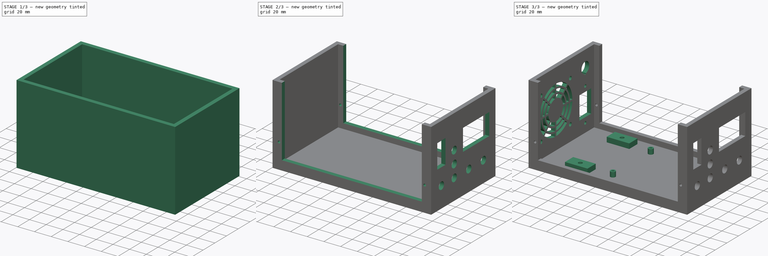
[diagram: build sequence overview — one tinted view per stage of 3, left to right]
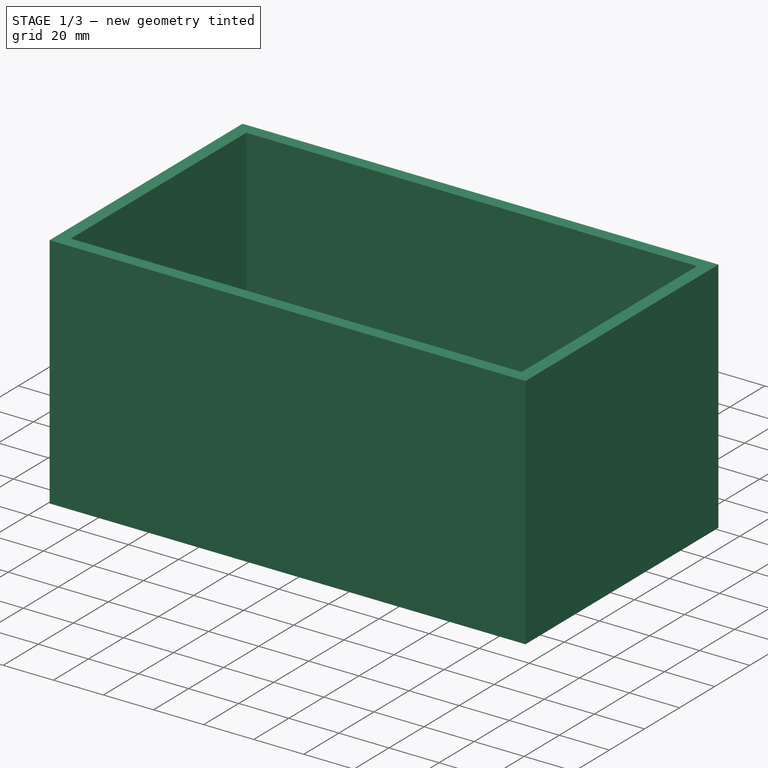
[diagram: stage 1 of 3 — iso view after this stage's code; geometry added in this stage tinted green]
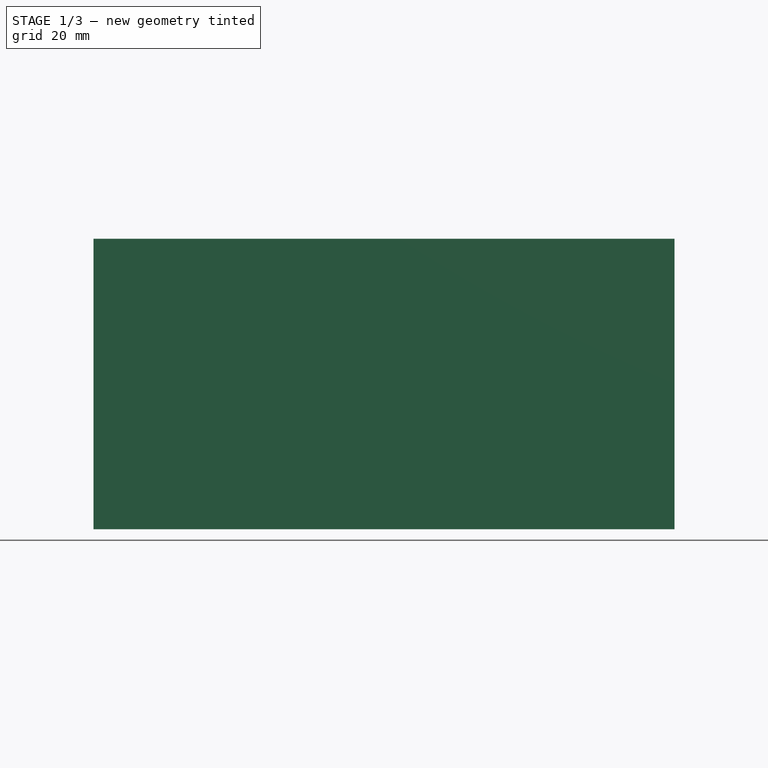
[diagram: stage 1 of 3 — front view after this stage's code; geometry added in this stage tinted green]
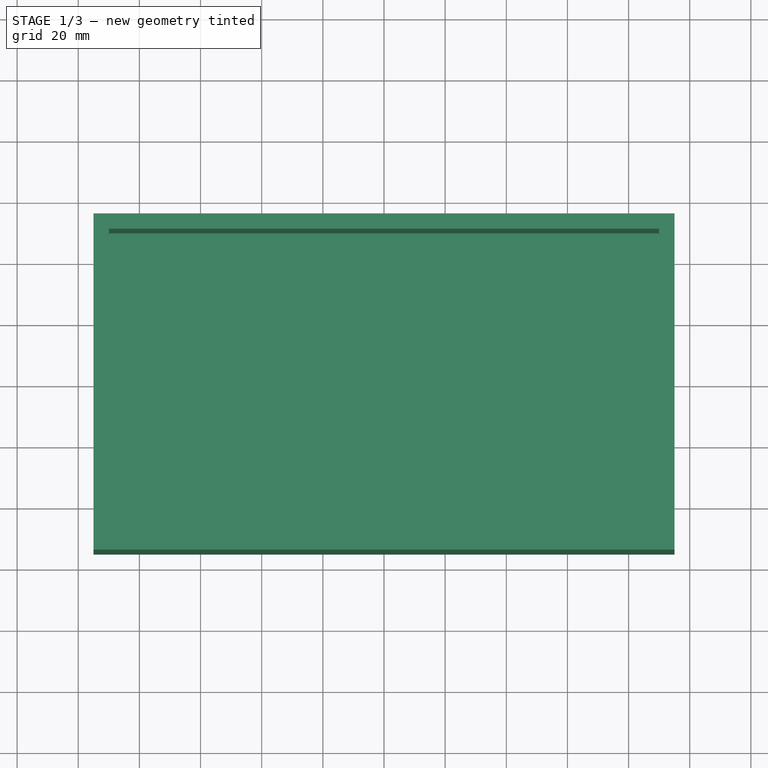
[diagram: stage 1 of 3 — top view after this stage's code; geometry added in this stage tinted green]
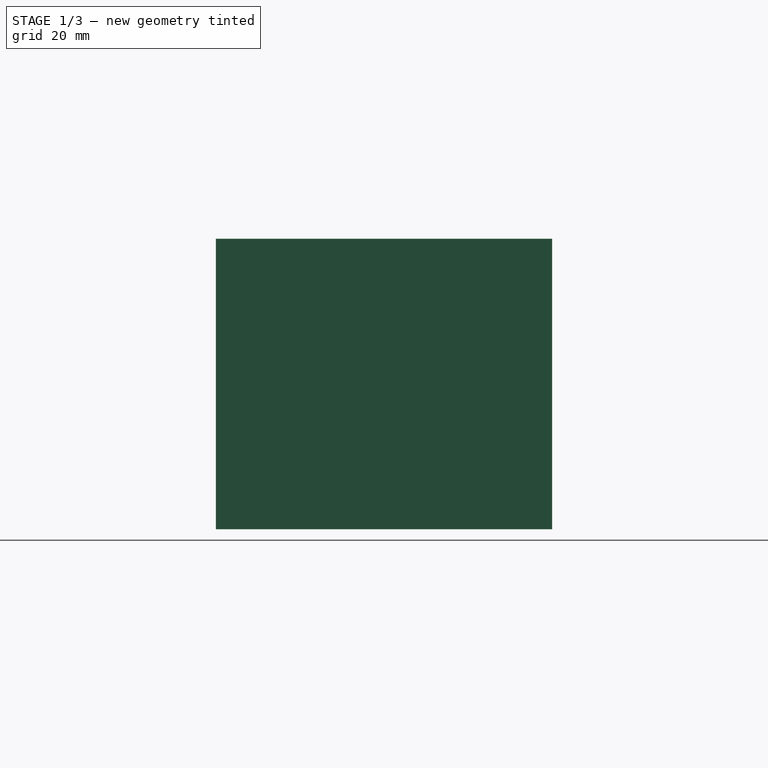
[diagram: stage 1 of 3 — right view after this stage's code; geometry added in this stage tinted green]
FCSTD DOCUMENT  (FreeCAD 0.19R24276 (Git))
Label: Case
License: All rights reserved
LicenseURL: http://en.wikipedia.org/wiki/All_rights_reserved
objects: Sketcher::SketchObject×6, PartDesign::Pocket×4, PartDesign::Pad×2, PartDesign::Body×1
note: 19 computed .brp shape members not serialized (recipe doc carries the construction recipe); baked Part::Feature solids carry a one-line shape summary decoded from their .brp

FEATURE [Sketcher::SketchObject] Sketch
  FullyConstrained = true
  MapMode = 5
  Support = -> [XY_Plane]
  sketch-geometry (4):
    g0: LineSegment StartX=-95 StartY=55 StartZ=0 EndX=95 EndY=55 EndZ=0
    g1: LineSegment StartX=95 StartY=55 StartZ=0 EndX=95 EndY=-55 EndZ=0
    g2: LineSegment StartX=95 StartY=-55 StartZ=0 EndX=-95 EndY=-55 EndZ=0
    g3: LineSegment StartX=-95 StartY=-55 StartZ=0 EndX=-95 EndY=55 EndZ=0
  constraints (9):
    c: Coincident(g0,g1)
    c: Coincident(g1,g2)
    c: Coincident(g2,g3)
    c: Coincident(g3,g0)
    c: DistanceX(g0,g0) = 190
    c: DistanceY(g1,g1) = 110
    c: Symmetric(g2,g1,g-2)
    c: Symmetric(g0,g0,g-2)
    c: Symmetric(g1,g0,g-1)
FEATURE [PartDesign::Pad] Pad
  Direction = (1,1,1)
  Length = 95
  Length2 = 100
  Profile = -> Sketch
  Type = 0
FEATURE [Sketcher::SketchObject] Sketch001  label="Front"
  FullyConstrained = true
  MapMode = 5
  Placement = pos=(90,0,0) rot=(0.57735,0.57735,0.57735;2.0944rad)
  sketch-geometry (14):
    g0: Circle CenterX=-15.4939 CenterY=24.7951 CenterZ=0 NormalX=0 NormalY=0 NormalZ=1 AngleXU=0 Radius=4.5
    g1: Circle CenterX=34.4619 CenterY=24.7951 CenterZ=0 NormalX=0 NormalY=0 NormalZ=1 AngleXU=0 Radius=4.5
    g2: Circle CenterX=-15.4939 CenterY=54.7951 CenterZ=0 NormalX=0 NormalY=0 NormalZ=1 AngleXU=0 Radius=4.5
    g3: LineSegment StartX=-0.538147 StartY=73.2629 StartZ=0 EndX=44.4619 EndY=73.2629 EndZ=0
    g4: LineSegment StartX=44.4619 StartY=73.2629 StartZ=0 EndX=44.4619 EndY=47.2629 EndZ=0
    g5: LineSegment StartX=44.4619 StartY=47.2629 StartZ=0 EndX=-0.538147 EndY=47.2629 EndZ=0
    g6: LineSegment StartX=-0.538147 StartY=47.2629 StartZ=0 EndX=-0.538147 EndY=73.2629 EndZ=0
    g7: Circle CenterX=9.46185 CenterY=24.7951 CenterZ=0 NormalX=0 NormalY=0 NormalZ=1 AngleXU=0 Radius=4.5
    g8: Circle CenterX=-15.4939 CenterY=39.7951 CenterZ=0 NormalX=0 NormalY=0 NormalZ=1 AngleXU=0 Radius=4.5
    g9: LineSegment StartX=-44.4939 StartY=73.8 StartZ=0 EndX=-30.4939 EndY=73.8 EndZ=0
    g10: LineSegment StartX=-30.4939 StartY=73.8 StartZ=0 EndX=-30.4939 EndY=44.8 EndZ=0
    g11: LineSegment StartX=-30.4939 StartY=44.8 StartZ=0 EndX=-44.4939 EndY=44.8 EndZ=0
    g12: LineSegment StartX=-44.4939 StartY=44.8 StartZ=0 EndX=-44.4939 EndY=73.8 EndZ=0
    g13: Circle CenterX=-37.4939 CenterY=24.8 CenterZ=0 NormalX=0 NormalY=0 NormalZ=1 AngleXU=0 Radius=4.5
  constraints (37):
    c: Radius(g0) = 4.5
    c: Radius(g2) = 4.5
    c: Radius(g1) = 4.5
    c: Coincident(g3,g4)
    c: Coincident(g4,g5)
    c: Coincident(g5,g6)
    c: Coincident(g6,g3)
    c: Horizontal(g3)
    c: Horizontal(g5)
    c: Vertical(g4)
    c: Vertical(g6)
    c: DistanceX(g3,g3) = 45
    c: Radius(g8) = 4.5
    c: Radius(g7) = 4.5
    c: DistanceY(g4,g4) = 26
    c: Coincident(g9,g10)
    c: Coincident(g10,g11)
    c: Coincident(g11,g12)
    c: Coincident(g12,g9)
    c: Horizontal(g9)
    c: Horizontal(g11)
    c: Vertical(g10)
    c: Vertical(g12)
    c: DistanceX(g9,g9) = 14
    c: DistanceY(g10,g10) = 29
    c: Radius(g13) = 4.5
    c: Block(g7)
    c: Block(g1)
    c: Block(g0)
    c: Block(g8)
    c: Block(g2)
    c: Block(g13)
    c: Block(g10)
    c: Block(g3)
    c: Block(g4)
    c: Block(g5)
    c: Block(g6)
FEATURE [Sketcher::SketchObject] Sketch003  label="Top"
  FullyConstrained = true
  MapMode = 5
  Placement = pos=(0,0,95) rot=(0,0,1;0rad)
  Support = -> [Pad]
  sketch-geometry (4):
    g0: LineSegment StartX=-90 StartY=50 StartZ=0 EndX=90 EndY=50 EndZ=0
    g1: LineSegment StartX=90 StartY=50 StartZ=0 EndX=90 EndY=-50 EndZ=0
    g2: LineSegment StartX=90 StartY=-50 StartZ=0 EndX=-90 EndY=-50 EndZ=0
    g3: LineSegment StartX=-90 StartY=-50 StartZ=0 EndX=-90 EndY=50 EndZ=0
  constraints (10):
    c: Coincident(g0,g1)
    c: Coincident(g1,g2)
    c: Coincident(g2,g3)
    c: Coincident(g3,g0)
    c: Horizontal(g2)
    c: Vertical(g3)
    c: DistanceY(g1,g1) = 100
    c: DistanceX(g0,g0) = 180
    c: Symmetric(g0,g0,g-2)
    c: Symmetric(g1,g0,g-1)
FEATURE [PartDesign::Pocket] Pocket
  BaseFeature = -> Pad
  Length = 90
  Length2 = 100
  Profile = -> Sketch003
  Type = 0
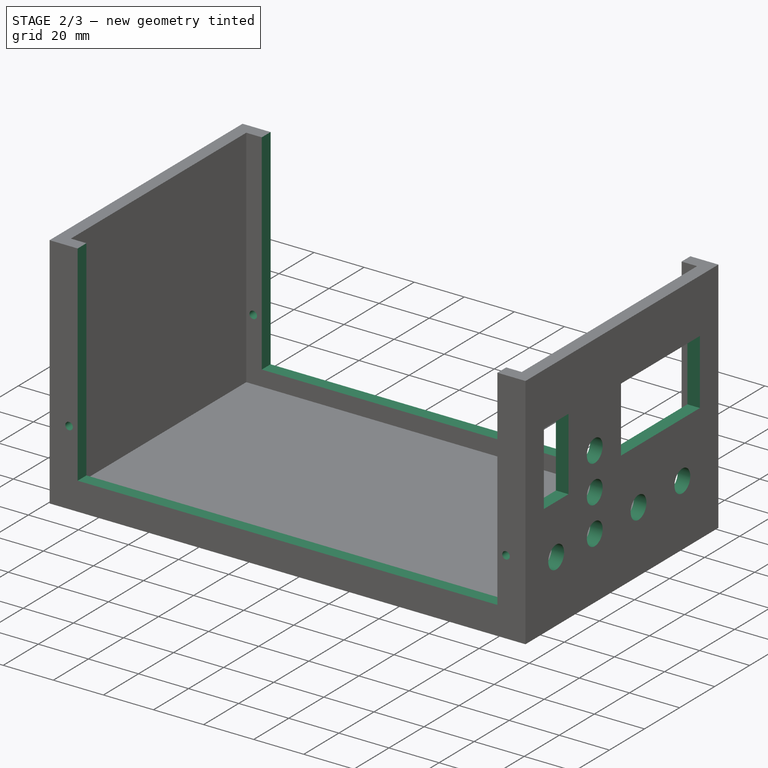
[diagram: stage 2 of 3 — iso view after this stage's code; geometry added in this stage tinted green]
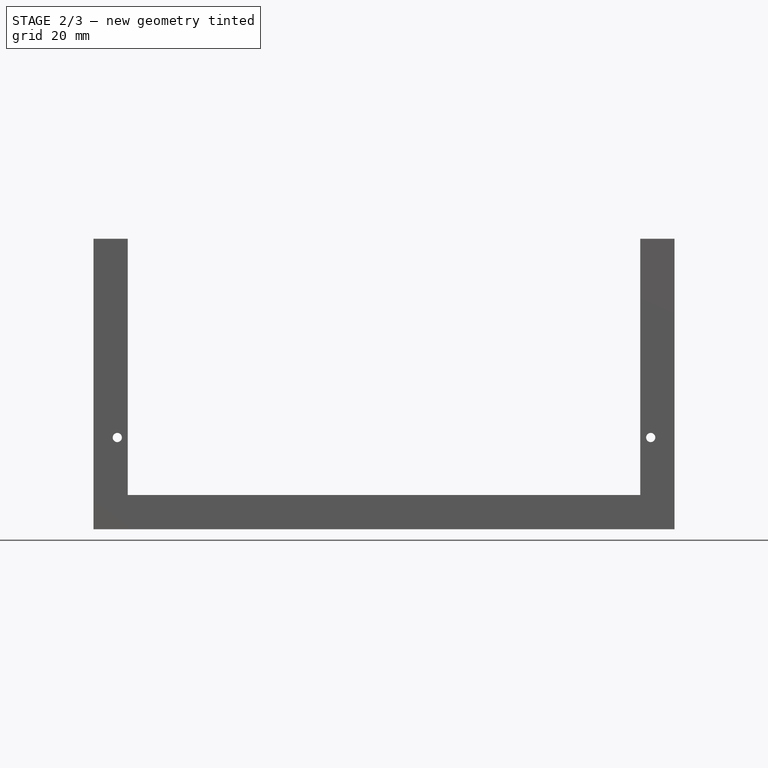
[diagram: stage 2 of 3 — front view after this stage's code; geometry added in this stage tinted green]
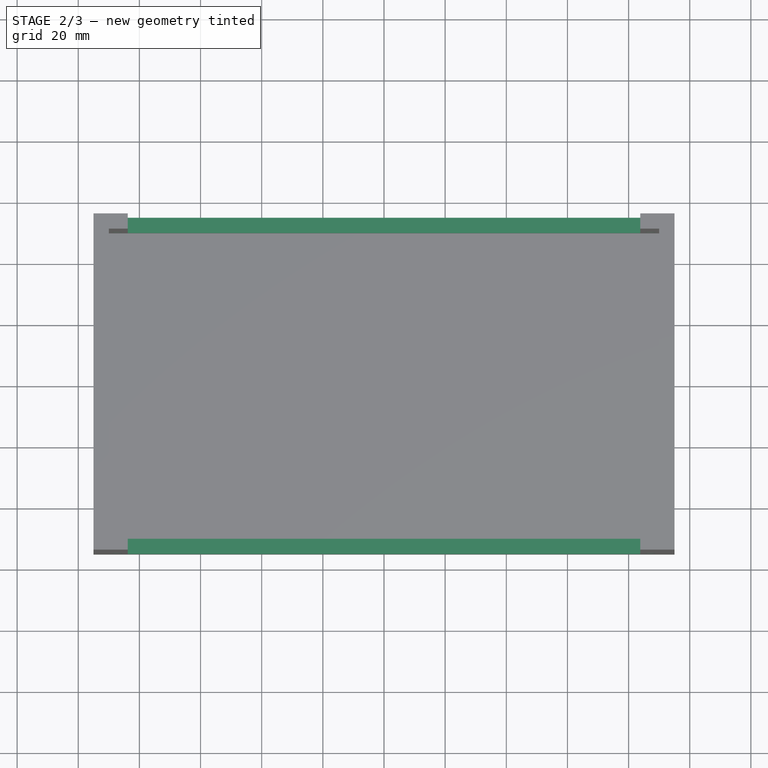
[diagram: stage 2 of 3 — top view after this stage's code; geometry added in this stage tinted green]
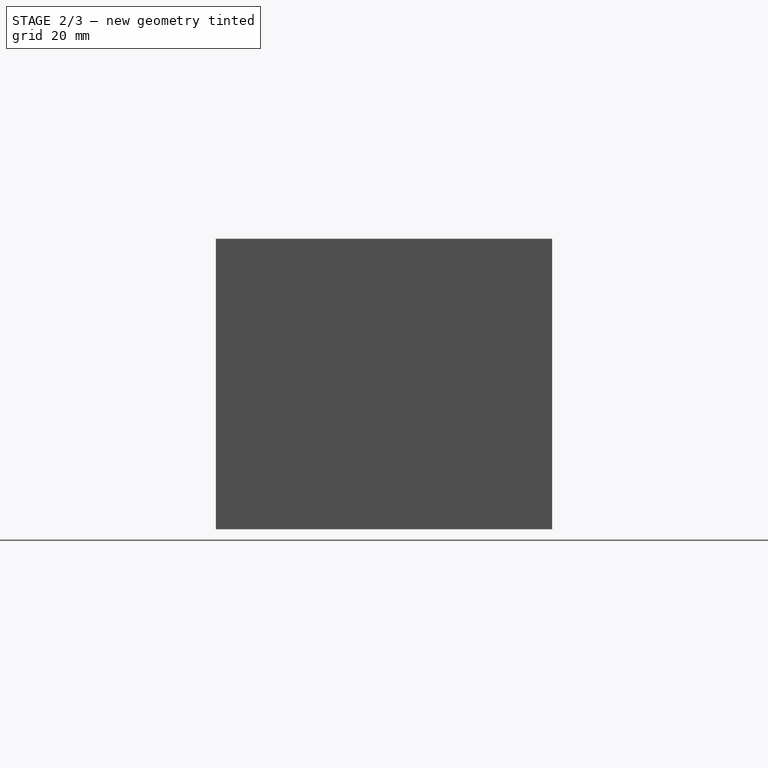
[diagram: stage 2 of 3 — right view after this stage's code; geometry added in this stage tinted green]
FEATURE [Sketcher::SketchObject] Sketch004  label="Internal"
  FullyConstrained = false
  MapMode = 5
  Placement = pos=(0,0,5) rot=(0,0,1;0rad)
  sketch-geometry (24):
    g0: GeomPoint X=-9.76776 Y=32.385 Z=0
    g1: GeomPoint X=80.4022 Y=32.385 Z=0
    g2: GeomPoint X=80.4022 Y=-32.385 Z=0
    g3: GeomPoint X=-9.76776 Y=-32.385 Z=0
    g4: GeomPoint X=-46.46 Y=35.7124 Z=0
    g5: LineSegment StartX=-59.96 StartY=42.7124 StartZ=0 EndX=-32.96 EndY=42.7124 EndZ=0
    g6: LineSegment StartX=-32.96 StartY=42.7124 StartZ=0 EndX=-32.96 EndY=28.7124 EndZ=0
    g7: LineSegment StartX=-32.96 StartY=28.7124 StartZ=0 EndX=-59.96 EndY=28.7124 EndZ=0
    g8: LineSegment StartX=-59.96 StartY=28.7124 StartZ=0 EndX=-59.96 EndY=42.7124 EndZ=0
    g9: Circle CenterX=-9.76776 CenterY=32.385 CenterZ=0 NormalX=0 NormalY=0 NormalZ=1 AngleXU=0 Radius=1.5
    g10: Circle CenterX=80.4022 CenterY=32.385 CenterZ=0 NormalX=0 NormalY=0 NormalZ=1 AngleXU=0 Radius=1.5
    g11: Circle CenterX=-9.76776 CenterY=-32.385 CenterZ=0 NormalX=0 NormalY=0 NormalZ=1 AngleXU=0 Radius=1.5
    g12: Circle CenterX=80.4022 CenterY=-32.385 CenterZ=0 NormalX=0 NormalY=0 NormalZ=1 AngleXU=0 Radius=1.5
    g13: Circle CenterX=-9.76776 CenterY=32.385 CenterZ=0 NormalX=0 NormalY=0 NormalZ=1 AngleXU=0 Radius=3
    g14: Circle CenterX=80.4022 CenterY=32.385 CenterZ=0 NormalX=0 NormalY=0 NormalZ=1 AngleXU=0 Radius=3
    g15: Circle CenterX=-9.76776 CenterY=-32.385 CenterZ=0 NormalX=0 NormalY=0 NormalZ=1 AngleXU=0 Radius=3
    g16: Circle CenterX=80.4022 CenterY=-32.385 CenterZ=0 NormalX=0 NormalY=0 NormalZ=1 AngleXU=0 Radius=3
    g17: Circle CenterX=-46.46 CenterY=35.7124 CenterZ=0 NormalX=0 NormalY=0 NormalZ=1 AngleXU=0 Radius=2.3749
    g18: GeomPoint X=-46.46 Y=-35.7124 Z=0
    g19: LineSegment StartX=-59.96 StartY=-42.7124 StartZ=0 EndX=-32.96 EndY=-42.7124 EndZ=0
    g20: LineSegment StartX=-32.96 StartY=-42.7124 StartZ=0 EndX=-32.96 EndY=-28.7124 EndZ=0
    g21: LineSegment StartX=-32.96 StartY=-28.7124 StartZ=0 EndX=-59.96 EndY=-28.7124 EndZ=0
    g22: LineSegment StartX=-59.96 StartY=-28.7124 StartZ=0 EndX=-59.96 EndY=-42.7124 EndZ=0
    g23: Circle CenterX=-46.46 CenterY=-35.7124 CenterZ=0 NormalX=0 NormalY=0 NormalZ=1 AngleXU=0 Radius=2.3749
  constraints (40):
    c: DistanceX(g4) = -46.46
    c: DistanceY(g4) = 35.7124
    c: Coincident(g5,g6)
    c: Coincident(g6,g7)
    c: Coincident(g7,g8)
    c: Coincident(g8,g5)
    c: Horizontal(g5)
    c: Horizontal(g7)
    c: Vertical(g6)
    c: Vertical(g8)
    c: DistanceX(g7,g7) = 27
    c: DistanceY(g6,g6) = 14
    c: DistanceX(g4,g6) = 13.5
    c: DistanceY(g4,g5) = 7
    c: Coincident(g9,g0)
    c: Diameter(g9) = 3
    c: Coincident(g10,g1)
    c: Diameter(g10) = 3
    c: Diameter(g11) = 3
    c: Diameter(g12) = 3
    c: Coincident(g13,g9)
    c: Diameter(g13) = 6
    c: Coincident(g14,g10)
    c: Diameter(g14) = 6
    c: Diameter(g15) = 6
    c: Diameter(g16) = 6
    c: Coincident(g17,g4)
    c: Diameter(g17) = 4.7498
    c: Block(g17)
    c: Coincident(g19,g20)
    c: Coincident(g20,g21)
    c: Coincident(g21,g22)
    c: Coincident(g22,g19)
    c: Horizontal(g19)
    c: Horizontal(g21)
    c: Vertical(g20)
    c: Vertical(g22)
    c: Coincident(g23,g18)
    c: Diameter(g23) = 4.7498
    c: Block(g23)
FEATURE [PartDesign::Pocket] Pocket001
  BaseFeature = -> Pocket
  Length = 5
  Length2 = 100
  Profile = -> Sketch001
  Reversed = true
  Type = 0
FEATURE [Sketcher::SketchObject] Sketch005  label="Lateral"
  FullyConstrained = true
  MapMode = 5
  Placement = pos=(0,-55,0) rot=(1,0,0;1.5708rad)
  sketch-geometry (6):
    g0: LineSegment StartX=-83.8 StartY=95 StartZ=0 EndX=83.8 EndY=95 EndZ=0
    g1: LineSegment StartX=83.8 StartY=95 StartZ=0 EndX=83.8 EndY=11.2 EndZ=0
    g2: LineSegment StartX=83.8 StartY=11.2 StartZ=0 EndX=-83.8 EndY=11.2 EndZ=0
    g3: LineSegment StartX=-83.8 StartY=11.2 StartZ=0 EndX=-83.8 EndY=95 EndZ=0
    g4: Circle CenterX=87.225 CenterY=30 CenterZ=0 NormalX=0 NormalY=0 NormalZ=1 AngleXU=0 Radius=1.5
    g5: Circle CenterX=-87.225 CenterY=30 CenterZ=0 NormalX=0 NormalY=0 NormalZ=1 AngleXU=0 Radius=1.5
  constraints (17):
    c: Coincident(g0,g1)
    c: Coincident(g1,g2)
    c: Coincident(g2,g3)
    c: Coincident(g3,g0)
    c: Horizontal(g2)
    c: Vertical(g1)
    c: Vertical(g3)
    c: Symmetric(g0,g0,g-2)
    c: Distance(g1,g-1) = 11.2
    c: DistanceX(g0,g0) = 167.6
    c: DistanceY(g1,g1) = 83.8
    c: Distance(g4,g-1) = 30
    c: Distance(g5,g-1) = 30
    c: Distance(g5,g3) = 3.425
    c: Distance(g4,g1) = 3.425
    c: Diameter(g4) = 3
    c: Diameter(g5) = 3
FEATURE [PartDesign::Pocket] Pocket003
  BaseFeature = -> Pocket001
  Length = 0
  Length2 = 100
  Profile = -> Sketch005
  Type = 1
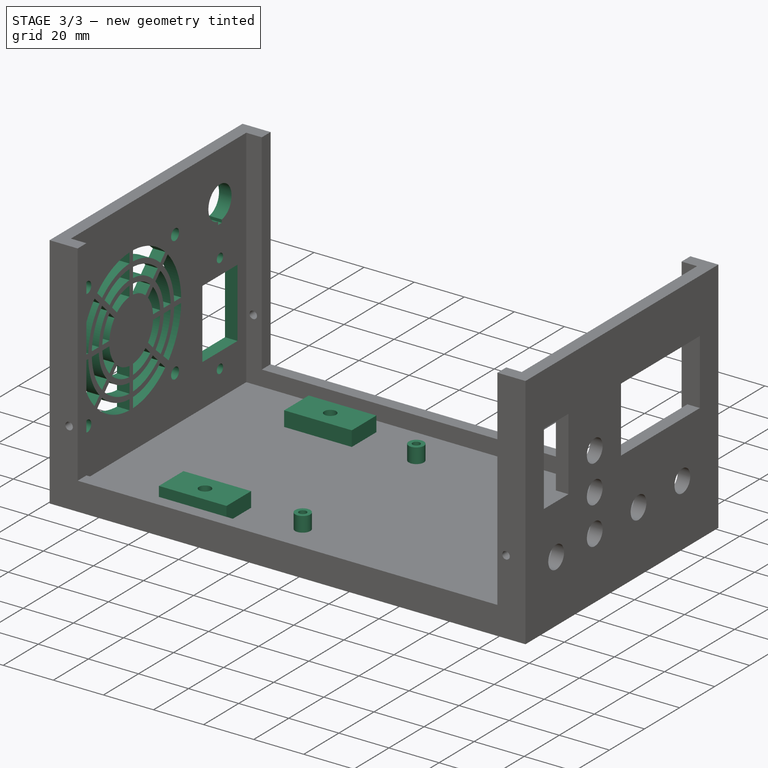
[diagram: stage 3 of 3 — iso view after this stage's code; geometry added in this stage tinted green]
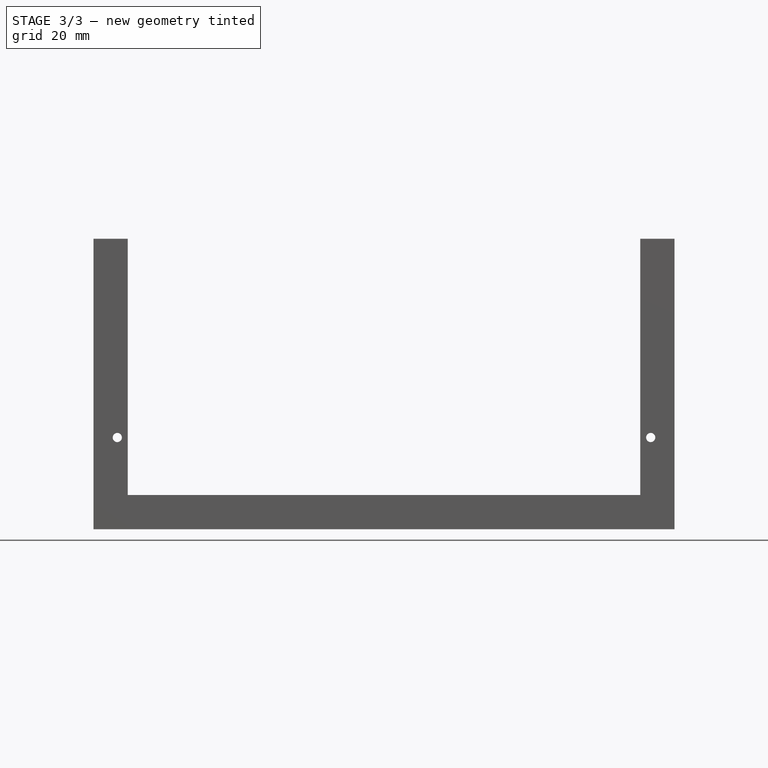
[diagram: stage 3 of 3 — front view after this stage's code; geometry added in this stage tinted green]
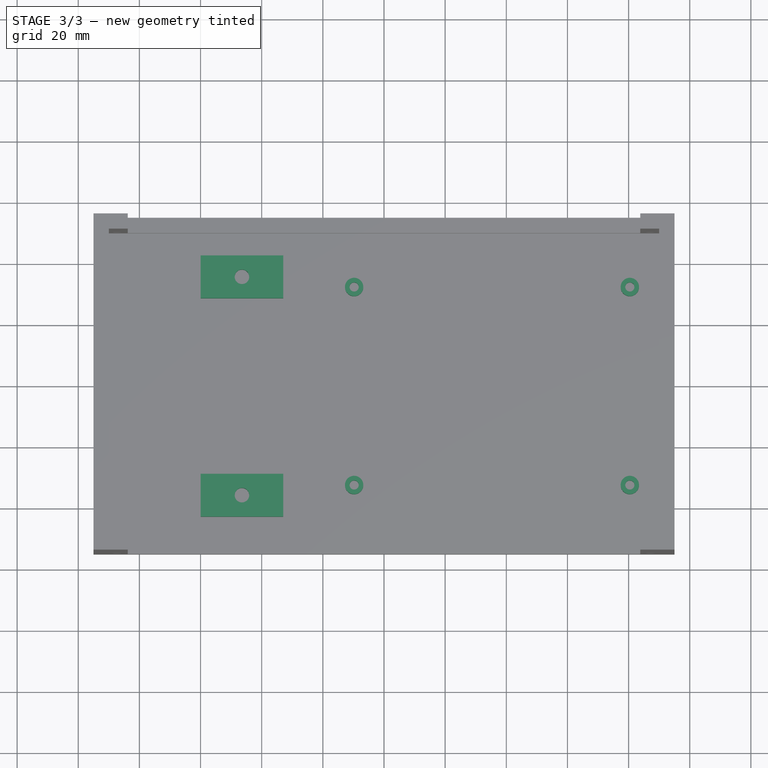
[diagram: stage 3 of 3 — top view after this stage's code; geometry added in this stage tinted green]
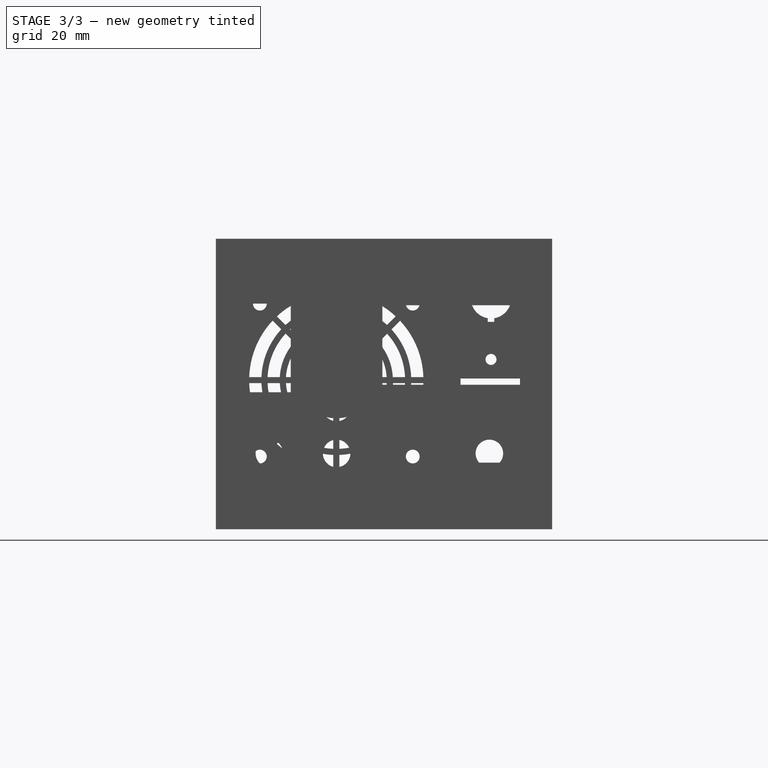
[diagram: stage 3 of 3 — right view after this stage's code; geometry added in this stage tinted green]
FEATURE [PartDesign::Pad] Pad001
  BaseFeature = -> Pocket003
  Direction = (1,1,1)
  Length = 6
  Length2 = 100
  Profile = -> Sketch004
  Type = 0
FEATURE [Sketcher::SketchObject] Sketch002  label="Rear"
  FullyConstrained = false
  MapMode = 5
  Placement = pos=(-95,0,0) rot=(0.57735,-0.57735,-0.57735;2.0944rad)
  Support = -> [Pad001]
  sketch-geometry (111):
    g0: ArcOfCircle CenterX=-35 CenterY=75.5359 CenterZ=0 NormalX=0 NormalY=0 NormalZ=1 AngleXU=0 Radius=6.6 StartAngle=4.87216 EndAngle=10.8358
    g1: LineSegment StartX=-45 StartY=49.2859 StartZ=0 EndX=-25 EndY=49.2859 EndZ=0
    g2: LineSegment StartX=-25 StartY=49.2859 StartZ=0 EndX=-25 EndY=21.7859 EndZ=0
    g3: LineSegment StartX=-25 StartY=21.7859 StartZ=0 EndX=-45 EndY=21.7859 EndZ=0
    g4: LineSegment StartX=-45 StartY=21.7859 StartZ=0 EndX=-45 EndY=49.2859 EndZ=0
    g5: Circle CenterX=-35 CenterY=55.5359 CenterZ=0 NormalX=0 NormalY=0 NormalZ=1 AngleXU=0 Radius=1.8
    g6: Circle CenterX=-35 CenterY=15.5359 CenterZ=0 NormalX=0 NormalY=0 NormalZ=1 AngleXU=0 Radius=1.8
    g7: LineSegment StartX=-33.95 StartY=67.8359 StartZ=0 EndX=-33.95 EndY=69.02 EndZ=0
    g8: LineSegment StartX=-36.05 StartY=67.8359 StartZ=0 EndX=-36.05 EndY=69.02 EndZ=0
    g9: LineSegment StartX=-36.05 StartY=67.8359 StartZ=0 EndX=-33.95 EndY=67.8359 EndZ=0
    g10: Circle CenterX=-9.39982 CenterY=73.7729 CenterZ=0 NormalX=0 NormalY=0 NormalZ=1 AngleXU=0 Radius=2.25
    g11: Circle CenterX=-9.39983 CenterY=23.7729 CenterZ=0 NormalX=0 NormalY=0 NormalZ=1 AngleXU=0 Radius=2.25
    g12: Circle CenterX=40.6002 CenterY=23.7729 CenterZ=0 NormalX=0 NormalY=0 NormalZ=1 AngleXU=0 Radius=2.25
    g13: Circle CenterX=40.6002 CenterY=73.7729 CenterZ=0 NormalX=0 NormalY=0 NormalZ=1 AngleXU=0 Radius=2.25
    g14: LineSegment StartX=-3.83689 StartY=69.6164 StartZ=0 EndX=-1.00163 EndY=66.7904 EndZ=0
    g15: LineSegment StartX=-5.2584 StartY=68.1938 StartZ=0 EndX=-2.4271 EndY=65.3641 EndZ=0
    g16: LineSegment StartX=4.67707 StartY=61.1396 StartZ=0 EndX=7.51264 EndY=58.304 EndZ=0
    g17: LineSegment StartX=3.23854 StartY=59.7018 StartZ=0 EndX=6.07478 EndY=56.8672 EndZ=0
    g18: LineSegment StartX=-1.01115 StartY=63.949 StartZ=0 EndX=1.82155 EndY=61.1179 EndZ=0
    g19: LineSegment StartX=0.416311 StartY=65.3771 StartZ=0 EndX=3.25306 EndY=62.5496 EndZ=0
    g20: LineSegment StartX=23.7 StartY=39.2522 StartZ=0 EndX=26.5362 EndY=36.4176 EndZ=0
    g21: LineSegment StartX=32.2018 StartY=30.7553 StartZ=0 EndX=35.0331 EndY=27.9256 EndZ=0
    g22: LineSegment StartX=33.6694 StartY=32.2274 StartZ=0 EndX=36.5031 EndY=29.3998 EndZ=0
    g23: LineSegment StartX=27.9532 StartY=35.0015 StartZ=0 EndX=30.7859 EndY=32.1704 EndZ=0
    g24: LineSegment StartX=29.4159 StartY=36.4693 StartZ=0 EndX=32.2508 EndY=33.6399 EndZ=0
    g25: LineSegment StartX=25.1564 StartY=40.7151 StartZ=0 EndX=27.9964 EndY=37.8833 EndZ=0
    g26: LineSegment StartX=16.6003 StartY=36.313 StartZ=0 EndX=16.6003 EndY=32.3032 EndZ=0
    g27: LineSegment StartX=14.6002 StartY=36.313 StartZ=0 EndX=14.6002 EndY=32.3032 EndZ=0
    g28: LineSegment StartX=14.601 StartY=30.2999 StartZ=0 EndX=14.601 EndY=26.2951 EndZ=0
    g29: LineSegment StartX=16.6003 StartY=30.3 StartZ=0 EndX=16.6003 EndY=26.2951 EndZ=0
    g30: LineSegment StartX=14.6019 StartY=24.2932 StartZ=0 EndX=14.6019 EndY=20.2904 EndZ=0
    g31: LineSegment StartX=16.6003 StartY=24.2933 StartZ=0 EndX=16.6003 EndY=20.2905 EndZ=0
    g32: LineSegment StartX=14.6002 StartY=61.2328 StartZ=0 EndX=14.6002 EndY=65.2426 EndZ=0
    g33: LineSegment StartX=14.6002 StartY=67.2459 StartZ=0 EndX=14.6002 EndY=71.2507 EndZ=0
    g34: LineSegment StartX=14.6002 StartY=73.2525 StartZ=0 EndX=14.6002 EndY=77.2554 EndZ=0
    g35: LineSegment StartX=16.5996 StartY=77.2554 StartZ=0 EndX=16.5996 EndY=73.2525 EndZ=0
    g36: LineSegment StartX=16.6003 StartY=71.2507 StartZ=0 EndX=16.6003 EndY=67.2458 EndZ=0
    g37: LineSegment StartX=16.6003 StartY=65.2426 StartZ=0 EndX=16.6003 EndY=61.2328 EndZ=0
    g38: LineSegment StartX=-12.8825 StartY=49.766 StartZ=0 EndX=-8.87969 EndY=49.766 EndZ=0
    g39: LineSegment StartX=-6.8779 StartY=49.766 StartZ=0 EndX=-2.87315 EndY=49.766 EndZ=0
    g40: LineSegment StartX=-0.869912 StartY=49.766 StartZ=0 EndX=3.13969 EndY=49.766 EndZ=0
    g41: LineSegment StartX=-12.8826 StartY=47.7813 StartZ=0 EndX=-8.87975 EndY=47.7813 EndZ=0
    g42: LineSegment StartX=-6.87782 StartY=47.7734 StartZ=0 EndX=-2.95998 EndY=47.7734 EndZ=0
    g43: LineSegment StartX=-0.869609 StartY=47.7748 StartZ=0 EndX=3.14009 EndY=47.7748 EndZ=0
    g44: LineSegment StartX=28.0607 StartY=49.766 StartZ=0 EndX=32.0703 EndY=49.766 EndZ=0
    g45: LineSegment StartX=34.0735 StartY=49.766 StartZ=0 EndX=38.0782 EndY=49.766 EndZ=0
    g46: LineSegment StartX=40.08 StartY=49.766 StartZ=0 EndX=44.0829 EndY=49.766 EndZ=0
    g47: LineSegment StartX=28.06 StartY=47.772 StartZ=0 EndX=32.0698 EndY=47.772 EndZ=0
    g48: LineSegment StartX=34.0731 StartY=47.772 StartZ=0 EndX=38.0779 EndY=47.772 EndZ=0
    g49: LineSegment StartX=40.0797 StartY=47.772 StartZ=0 EndX=44.0826 EndY=47.772 EndZ=0
    g50: LineSegment StartX=23.7036 StartY=58.2905 StartZ=0 EndX=26.5397 EndY=61.1251 EndZ=0
    g51: LineSegment StartX=27.9541 StartY=62.5436 StartZ=0 EndX=30.7873 EndY=65.3741 EndZ=0
    g52: LineSegment StartX=32.2028 StartY=66.7896 StartZ=0 EndX=35.0333 EndY=69.6201 EndZ=0
    g53: LineSegment StartX=36.444 StartY=68.2096 StartZ=0 EndX=33.6137 EndY=65.379 EndZ=0
    g54: LineSegment StartX=32.1983 StartY=63.9635 StartZ=0 EndX=29.3678 EndY=61.1302 EndZ=0
    g55: LineSegment StartX=27.9501 StartY=59.715 StartZ=0 EndX=25.115 EndY=56.8796 EndZ=0
    g56: LineSegment StartX=-5.6766 StartY=29.8111 StartZ=0 EndX=-2.69585 EndY=32.4786 EndZ=0
    g57: LineSegment StartX=-1.20562 StartY=33.8121 StartZ=0 EndX=1.71026 EndY=36.4219 EndZ=0
    g58: LineSegment StartX=3.24724 StartY=37.8342 StartZ=0 EndX=6.08256 EndY=40.6695 EndZ=0
    g59: LineSegment StartX=7.49419 StartY=39.2575 StartZ=0 EndX=4.65905 EndY=36.4221 EndZ=0
    g60: LineSegment StartX=3.24256 StartY=35.0056 StartZ=0 EndX=0.410882 EndY=32.1736 EndZ=0
    g61: LineSegment StartX=-1.00456 StartY=30.7581 StartZ=0 EndX=-3.83501 EndY=27.9277 EndZ=0
    g62: GeomPoint X=15.6002 Y=48.7729 Z=0
    g63: ArcOfCircle CenterX=15.6002 CenterY=48.7729 CenterZ=0 NormalX=0 NormalY=0 NormalZ=1 AngleXU=0 Radius=12.5 StartAngle=1.65088 EndAngle=2.27444
    g64: ArcOfCircle CenterX=15.6002 CenterY=48.7729 CenterZ=0 NormalX=0 NormalY=0 NormalZ=1 AngleXU=0 Radius=12.5 StartAngle=0.86548 EndAngle=1.4907
    g65: ArcOfCircle CenterX=15.6002 CenterY=48.7729 CenterZ=0 NormalX=0 NormalY=0 NormalZ=1 AngleXU=0 Radius=12.5 StartAngle=0.0795301 EndAngle=0.705661
    g66: ArcOfCircle CenterX=15.6002 CenterY=48.7729 CenterZ=0 NormalX=0 NormalY=0 NormalZ=1 AngleXU=0 Radius=12.5 StartAngle=2.43724 EndAngle=3.06206
    g67: ArcOfCircle CenterX=15.6002 CenterY=48.7729 CenterZ=0 NormalX=0 NormalY=0 NormalZ=1 AngleXU=0 Radius=12.5 StartAngle=3.22152 EndAngle=3.84691
    g68: ArcOfCircle CenterX=15.6002 CenterY=48.7729 CenterZ=0 NormalX=0 NormalY=0 NormalZ=1 AngleXU=0 Radius=12.5 StartAngle=4.0068 EndAngle=4.6323
    g69: ArcOfCircle CenterX=15.6002 CenterY=48.7729 CenterZ=0 NormalX=0 NormalY=0 NormalZ=1 AngleXU=0 Radius=12.5 StartAngle=4.79249 EndAngle=5.41732
    g70: ArcOfCircle CenterX=15.6002 CenterY=48.7729 CenterZ=0 NormalX=0 NormalY=0 NormalZ=1 AngleXU=0 Radius=12.5 StartAngle=5.58265 EndAngle=6.20302
    g71: ArcOfCircle CenterX=15.6002 CenterY=48.7729 CenterZ=0 NormalX=0 NormalY=0 NormalZ=1 AngleXU=0 Radius=16.5 StartAngle=1.63144 EndAngle=2.29429
    g72: ArcOfCircle CenterX=15.6002 CenterY=48.7729 CenterZ=0 NormalX=0 NormalY=0 NormalZ=1 AngleXU=0 Radius=16.5 StartAngle=2.41764 EndAngle=3.08137
    g73: ArcOfCircle CenterX=15.6002 CenterY=48.7729 CenterZ=0 NormalX=0 NormalY=0 NormalZ=1 AngleXU=0 Radius=16.5 StartAngle=3.20212 EndAngle=3.86635
    g74: ArcOfCircle CenterX=15.6002 CenterY=48.7729 CenterZ=0 NormalX=0 NormalY=0 NormalZ=1 AngleXU=0 Radius=16.5 StartAngle=3.98744 EndAngle=4.65175
    g75: ArcOfCircle CenterX=15.6002 CenterY=48.7729 CenterZ=0 NormalX=0 NormalY=0 NormalZ=1 AngleXU=0 Radius=16.5 StartAngle=4.77304 EndAngle=5.43693
    g76: ArcOfCircle CenterX=15.6002 CenterY=48.7729 CenterZ=0 NormalX=0 NormalY=0 NormalZ=1 AngleXU=0 Radius=16.5 StartAngle=5.5624 EndAngle=6.22249
    g77: ArcOfCircle CenterX=15.6002 CenterY=48.7729 CenterZ=0 NormalX=0 NormalY=0 NormalZ=1 AngleXU=0 Radius=16.5 StartAngle=0.060223 EndAngle=0.725026
    g78: ArcOfCircle CenterX=15.6002 CenterY=48.7729 CenterZ=0 NormalX=0 NormalY=0 NormalZ=1 AngleXU=0 Radius=16.5 StartAngle=0.845974 EndAngle=1.51014
    g79: ArcOfCircle CenterX=15.6002 CenterY=48.7729 CenterZ=0 NormalX=0 NormalY=0 NormalZ=1 AngleXU=0 Radius=18.5 StartAngle=1.62488 EndAngle=2.30152
    g80: ArcOfCircle CenterX=15.6002 CenterY=48.7729 CenterZ=0 NormalX=0 NormalY=0 NormalZ=1 AngleXU=0 Radius=18.5 StartAngle=2.41102 EndAngle=3.08789
    g81: ArcOfCircle CenterX=15.6002 CenterY=48.7729 CenterZ=0 NormalX=0 NormalY=0 NormalZ=1 AngleXU=0 Radius=18.587 StartAngle=3.19539 EndAngle=3.86841
    g82: ArcOfCircle CenterX=15.6002 CenterY=48.7729 CenterZ=0 NormalX=0 NormalY=0 NormalZ=1 AngleXU=0 Radius=18.5 StartAngle=3.9809 EndAngle=4.65835
    g83: ArcOfCircle CenterX=15.6002 CenterY=48.7729 CenterZ=0 NormalX=0 NormalY=0 NormalZ=1 AngleXU=0 Radius=18.5 StartAngle=4.76648 EndAngle=5.44355
    g84: ArcOfCircle CenterX=15.6002 CenterY=48.7729 CenterZ=0 NormalX=0 NormalY=0 NormalZ=1 AngleXU=0 Radius=18.5 StartAngle=5.55562 EndAngle=6.22905
    g85: ArcOfCircle CenterX=15.6002 CenterY=48.7729 CenterZ=0 NormalX=0 NormalY=0 NormalZ=1 AngleXU=0 Radius=18.5 StartAngle=0.0537055 EndAngle=0.731466
    g86: ArcOfCircle CenterX=15.6002 CenterY=48.7729 CenterZ=0 NormalX=0 NormalY=0 NormalZ=1 AngleXU=0 Radius=18.5 StartAngle=0.839575 EndAngle=1.51671
    g87: ArcOfCircle CenterX=15.6002 CenterY=48.7729 CenterZ=0 NormalX=0 NormalY=0 NormalZ=1 AngleXU=0 Radius=22.5 StartAngle=1.61526 EndAngle=2.31154
    g88: ArcOfCircle CenterX=15.6002 CenterY=48.7729 CenterZ=0 NormalX=0 NormalY=0 NormalZ=1 AngleXU=0 Radius=22.5 StartAngle=2.40131 EndAngle=3.09744
    g89: ArcOfCircle CenterX=15.6002 CenterY=48.7729 CenterZ=0 NormalX=0 NormalY=0 NormalZ=1 AngleXU=0 Radius=22.5002 StartAngle=3.18603 EndAngle=3.86898
    g90: ArcOfCircle CenterX=15.6002 CenterY=48.7729 CenterZ=0 NormalX=0 NormalY=0 NormalZ=1 AngleXU=0 Radius=22.5 StartAngle=3.97132 EndAngle=4.66797
    g91: ArcOfCircle CenterX=15.6002 CenterY=48.7729 CenterZ=0 NormalX=0 NormalY=0 NormalZ=1 AngleXU=0 Radius=22.5 StartAngle=4.75685 EndAngle=5.45325
    g92: ArcOfCircle CenterX=15.6002 CenterY=48.7729 CenterZ=0 NormalX=0 NormalY=0 NormalZ=1 AngleXU=0 Radius=22.5 StartAngle=5.5455 EndAngle=6.23868
    g93: ArcOfCircle CenterX=15.6002 CenterY=48.7729 CenterZ=0 NormalX=0 NormalY=0 NormalZ=1 AngleXU=0 Radius=22.5 StartAngle=0.044151 EndAngle=0.741149
    g94: ArcOfCircle CenterX=15.6002 CenterY=48.7729 CenterZ=0 NormalX=0 NormalY=0 NormalZ=1 AngleXU=0 Radius=22.5 StartAngle=0.829854 EndAngle=1.52633
    g95: ArcOfCircle CenterX=15.6002 CenterY=48.7729 CenterZ=0 NormalX=0 NormalY=0 NormalZ=1 AngleXU=0 Radius=24.5 StartAngle=1.61162 EndAngle=2.31532
    g96: ArcOfCircle CenterX=15.6002 CenterY=48.7729 CenterZ=0 NormalX=0 NormalY=0 NormalZ=1 AngleXU=0 Radius=24.5 StartAngle=2.39765 EndAngle=3.10105
    g97: ArcOfCircle CenterX=15.6002 CenterY=48.7729 CenterZ=0 NormalX=0 NormalY=0 NormalZ=1 AngleXU=0 Radius=24.5 StartAngle=3.18208 EndAngle=3.86919
    g98: ArcOfCircle CenterX=15.6002 CenterY=48.7729 CenterZ=0 NormalX=0 NormalY=0 NormalZ=1 AngleXU=0 Radius=24.5 StartAngle=3.9677 EndAngle=4.67163
    g99: ArcOfCircle CenterX=15.6002 CenterY=48.7729 CenterZ=0 NormalX=0 NormalY=0 NormalZ=1 AngleXU=0 Radius=24.5 StartAngle=4.75322 EndAngle=5.45691
    g100: ArcOfCircle CenterX=15.6002 CenterY=48.7729 CenterZ=0 NormalX=0 NormalY=0 NormalZ=1 AngleXU=0 Radius=24.5 StartAngle=5.54178 EndAngle=6.24232
    g101: ArcOfCircle CenterX=15.6002 CenterY=48.7729 CenterZ=0 NormalX=0 NormalY=0 NormalZ=1 AngleXU=0 Radius=24.5 StartAngle=0.040545 EndAngle=0.744766
    g102: ArcOfCircle CenterX=15.6002 CenterY=48.7729 CenterZ=0 NormalX=0 NormalY=0 NormalZ=1 AngleXU=0 Radius=24.5 StartAngle=0.826223 EndAngle=1.52999
    g103: ArcOfCircle CenterX=15.6002 CenterY=48.7729 CenterZ=0 NormalX=0 NormalY=0 NormalZ=1 AngleXU=0 Radius=28.5 StartAngle=1.60589 EndAngle=2.32129
    g104: ArcOfCircle CenterX=15.6002 CenterY=48.7729 CenterZ=0 NormalX=0 NormalY=0 NormalZ=1 AngleXU=0 Radius=28.5 StartAngle=2.39187 EndAngle=3.10674
    g105: ArcOfCircle CenterX=15.6002 CenterY=48.7729 CenterZ=0 NormalX=0 NormalY=0 NormalZ=1 AngleXU=0 Radius=28.5 StartAngle=3.17639 EndAngle=3.86952
    g106: ArcOfCircle CenterX=15.6002 CenterY=48.7729 CenterZ=0 NormalX=0 NormalY=0 NormalZ=1 AngleXU=0 Radius=28.5 StartAngle=3.96198 EndAngle=4.67736
    g107: ArcOfCircle CenterX=15.6002 CenterY=48.7729 CenterZ=0 NormalX=0 NormalY=0 NormalZ=1 AngleXU=0 Radius=28.5 StartAngle=4.74749 EndAngle=5.46269
    g108: ArcOfCircle CenterX=15.6002 CenterY=48.7729 CenterZ=0 NormalX=0 NormalY=0 NormalZ=1 AngleXU=0 Radius=28.5 StartAngle=5.53575 EndAngle=6.24806
    g109: ArcOfCircle CenterX=15.6002 CenterY=48.7729 CenterZ=0 NormalX=0 NormalY=0 NormalZ=1 AngleXU=0 Radius=28.5 StartAngle=0.034852 EndAngle=0.750477
    g110: ArcOfCircle CenterX=15.6002 CenterY=48.7729 CenterZ=0 NormalX=0 NormalY=0 NormalZ=1 AngleXU=0 Radius=28.5 StartAngle=0.82049 EndAngle=1.53572
  constraints (168):
    c: Vertical(g26)
    c: Vertical(g27)
    c: Vertical(g28)
    c: Vertical(g29)
    c: Vertical(g30)
    c: Vertical(g31)
    c: Vertical(g32)
    c: Vertical(g33)
    c: Vertical(g34)
    c: Vertical(g35)
    c: Vertical(g36)
    c: Vertical(g37)
    c: Horizontal(g38)
    c: Horizontal(g39)
    c: Horizontal(g40)
    c: Horizontal(g41)
    c: Horizontal(g42)
    c: Horizontal(g43)
    c: Horizontal(g44)
    c: Horizontal(g45)
    c: Horizontal(g46)
    c: Horizontal(g47)
    c: Horizontal(g48)
    c: Horizontal(g49)
    c: Coincident(g63,g62)
    c: Coincident(g63,g16)
    c: Coincident(g63,g32)
    c: Coincident(g64,g63)
    c: Coincident(g64,g37)
    c: Coincident(g64,g50)
    c: Coincident(g65,g63)
    c: Coincident(g65,g44)
    c: Coincident(g65,g55)
    c: Coincident(g66,g63)
    c: Coincident(g66,g17)
    c: Coincident(g66,g40)
    c: Coincident(g67,g63)
    c: Coincident(g67,g43)
    c: Coincident(g67,g58)
    c: Coincident(g68,g63)
    c: Coincident(g68,g59)
    c: Coincident(g68,g27)
    c: Coincident(g69,g63)
    c: Coincident(g69,g26)
    c: Coincident(g69,g20)
    c: Coincident(g70,g63)
    c: Coincident(g70,g25)
    c: Coincident(g70,g47)
    c: Coincident(g71,g63)
    c: Coincident(g71,g32)
    c: Coincident(g71,g16)
    c: Coincident(g72,g63)
    c: Coincident(g72,g17)
    c: Coincident(g72,g40)
    c: Coincident(g73,g63)
    c: Coincident(g73,g43)
    c: Coincident(g73,g58)
    c: Coincident(g74,g63)
    c: Coincident(g74,g59)
    c: Coincident(g74,g27)
    c: Coincident(g75,g63)
    c: Coincident(g75,g26)
    c: Coincident(g75,g20)
    c: Coincident(g76,g63)
    c: Coincident(g76,g25)
    c: Coincident(g76,g47)
    c: Coincident(g77,g63)
    c: Coincident(g77,g44)
    c: Coincident(g77,g55)
    c: Coincident(g78,g63)
    c: Coincident(g78,g50)
    c: Coincident(g78,g37)
    c: Coincident(g79,g63)
    c: Coincident(g79,g33)
    c: Coincident(g79,g19)
    c: Coincident(g80,g63)
    c: Coincident(g80,g18)
    c: Coincident(g80,g39)
    c: Coincident(g81,g63)
    c: Coincident(g81,g42)
    c: Coincident(g81,g57)
    c: Coincident(g82,g63)
    c: Coincident(g82,g60)
    c: Coincident(g82,g28)
    c: Coincident(g83,g63)
    c: Coincident(g83,g29)
    c: Coincident(g83,g23)
    c: Coincident(g84,g63)
    c: Coincident(g84,g24)
    c: Coincident(g84,g48)
    c: Coincident(g85,g63)
    c: Coincident(g85,g45)
    c: Coincident(g85,g54)
    c: Coincident(g86,g63)
    c: Coincident(g86,g51)
    c: Coincident(g86,g36)
    c: Coincident(g87,g63)
    c: Coincident(g87,g33)
    c: Coincident(g87,g19)
    c: Coincident(g88,g63)
    c: Coincident(g88,g18)
    c: Coincident(g88,g39)
    c: Coincident(g89,g63)
    c: Coincident(g89,g42)
    c: Coincident(g89,g57)
    c: Coincident(g90,g63)
    c: Coincident(g90,g60)
    c: Coincident(g90,g28)
    c: Coincident(g91,g63)
    c: Coincident(g91,g29)
    c: Coincident(g91,g23)
    c: Coincident(g92,g63)
    c: Coincident(g92,g24)
    c: Coincident(g92,g48)
    c: Coincident(g93,g63)
    c: Coincident(g93,g45)
    c: Coincident(g93,g54)
    c: Coincident(g94,g63)
    c: Coincident(g94,g51)
    c: Coincident(g94,g36)
    c: Coincident(g95,g63)
    c: Coincident(g95,g34)
    c: Coincident(g95,g14)
    c: Coincident(g96,g63)
    c: Coincident(g96,g15)
    c: Coincident(g96,g38)
    c: Coincident(g97,g63)
    c: Coincident(g97,g41)
    c: Coincident(g97,g56)
    c: Coincident(g98,g63)
    c: Coincident(g98,g61)
    c: Coincident(g98,g30)
    c: Coincident(g99,g63)
    c: Coincident(g99,g31)
    c: Coincident(g99,g21)
    c: Coincident(g100,g63)
    c: Coincident(g100,g22)
    c: Coincident(g100,g49)
    c: Coincident(g101,g63)
    c: Coincident(g101,g46)
    c: Coincident(g101,g53)
    c: Coincident(g102,g63)
    c: Coincident(g102,g52)
    c: Coincident(g102,g35)
    c: Coincident(g103,g63)
    c: Coincident(g103,g34)
    c: Coincident(g103,g14)
    c: Coincident(g104,g63)
    c: Coincident(g104,g15)
    c: Coincident(g104,g38)
    c: Coincident(g105,g63)
    c: Coincident(g105,g41)
    c: Coincident(g105,g56)
    c: Coincident(g106,g63)
    c: Coincident(g106,g61)
    c: Coincident(g106,g30)
    c: Coincident(g107,g63)
    c: Coincident(g107,g31)
    c: Coincident(g107,g21)
    c: Coincident(g108,g63)
    c: Coincident(g108,g22)
    c: Coincident(g108,g49)
    c: Coincident(g109,g63)
    c: Coincident(g109,g46)
    c: Coincident(g109,g53)
    c: Coincident(g110,g63)
    c: Coincident(g110,g52)
    c: Coincident(g110,g35)
FEATURE [PartDesign::Pocket] Pocket004
  BaseFeature = -> Pad001
  Length = 0
  Length2 = 100
  Profile = -> Sketch002
  Type = 3
  UpToFace = -> Pad001 [Face32]
FEATURE [PartDesign::Body] Body
  Group = -> [Sketch,Pad,Sketch001,Sketch002,Sketch003,Pocket,Sketch004,Pocket001,Sketch005,Pocket003,Pad001,Pocket004]
  Origin = -> Origin
  Tip = -> Pocket004
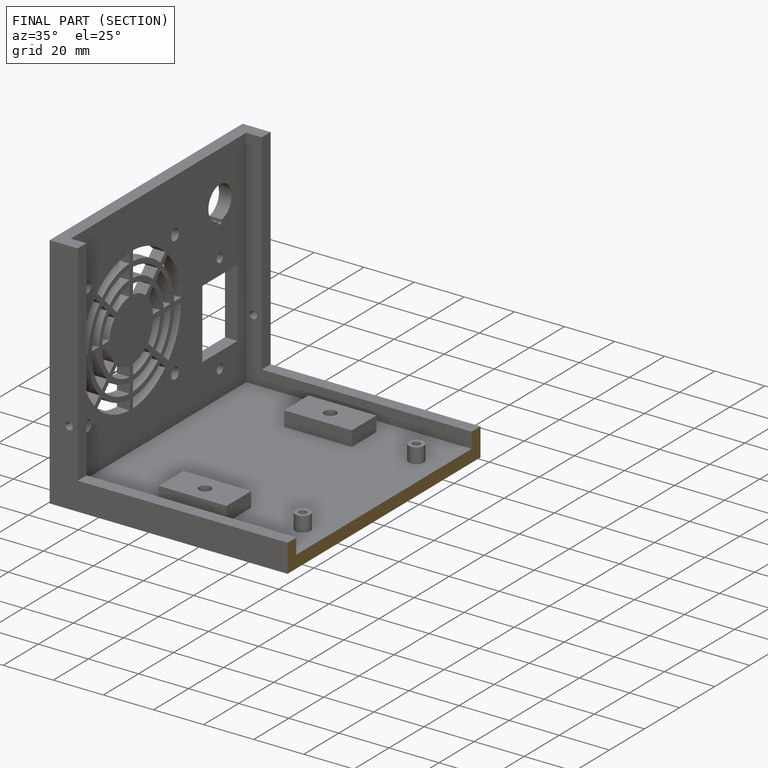
[diagram: finished part — half-section view (interior)]
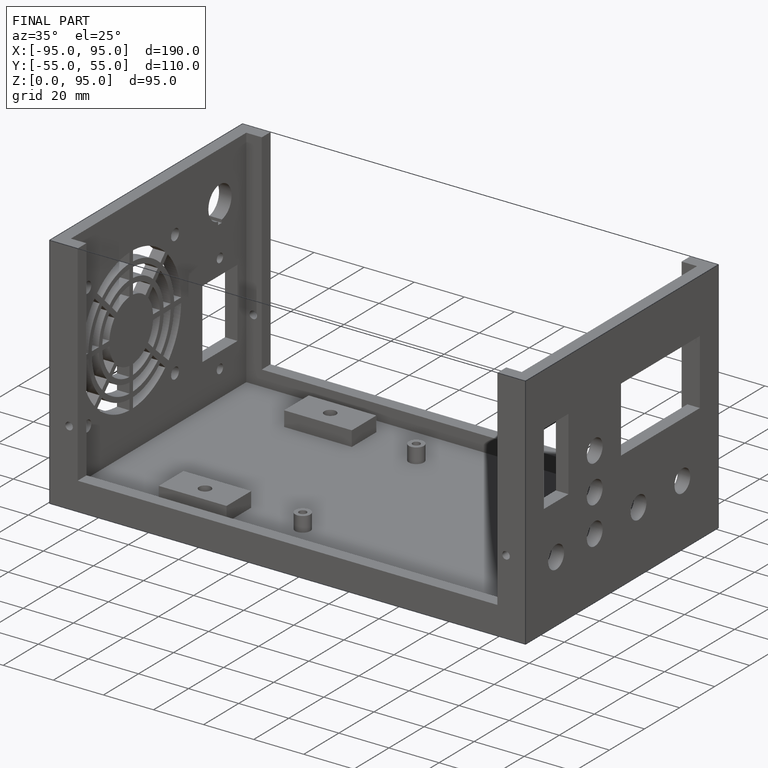
[diagram: finished part — iso view with bounding-box wireframe]
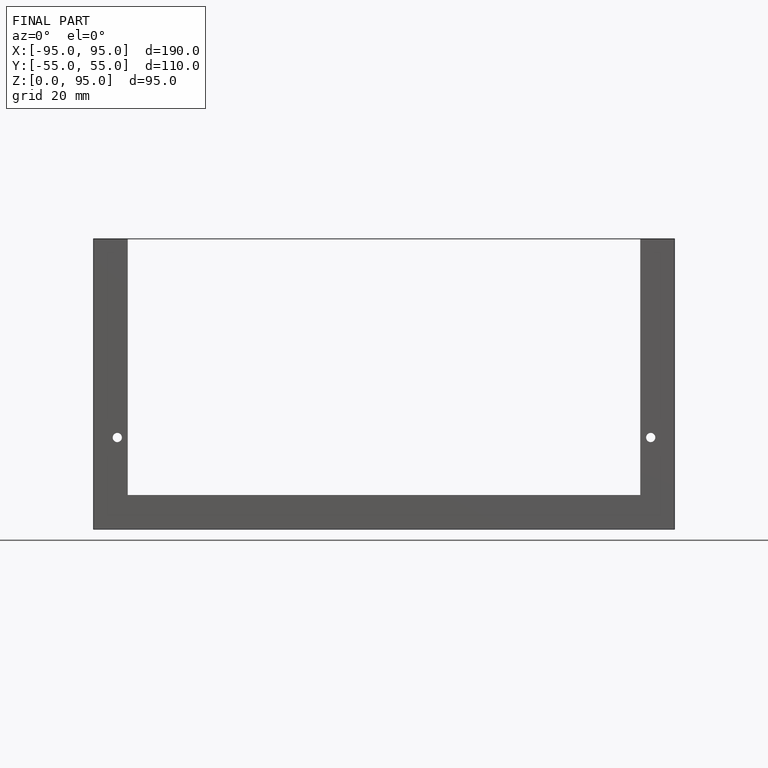
[diagram: finished part — front view with bounding-box wireframe]
